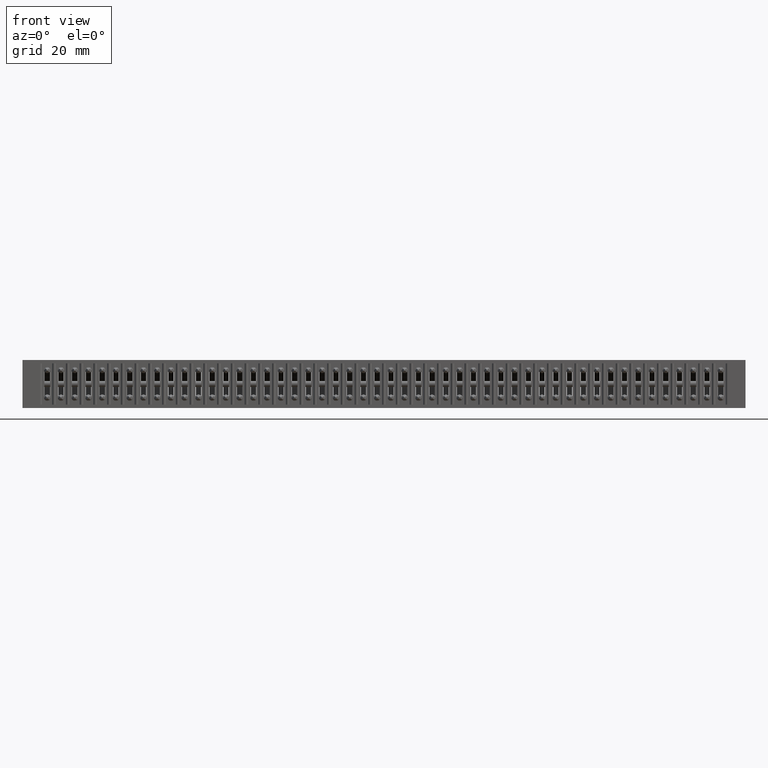
[diagram: clean part render]
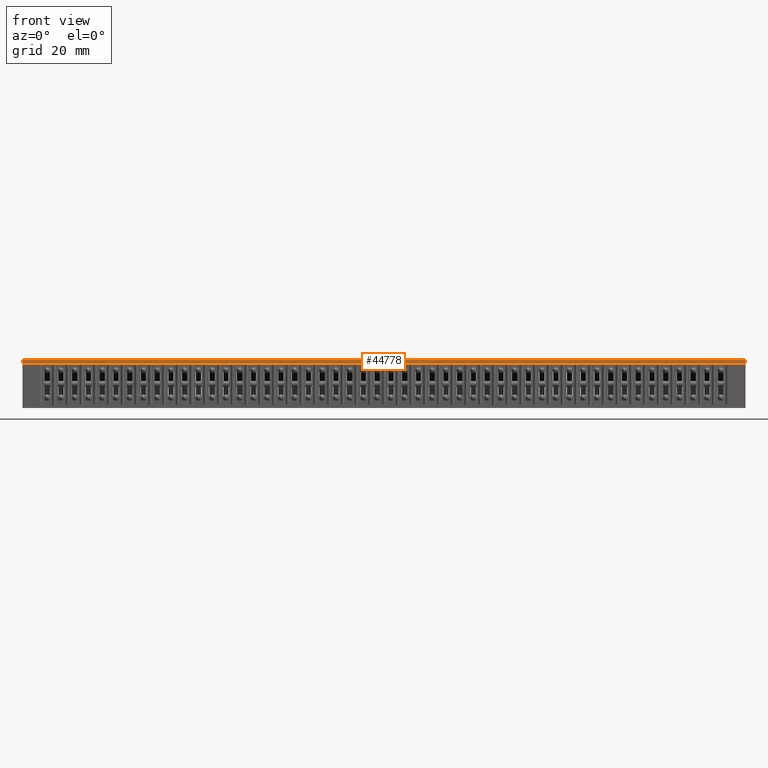
[diagram: same view with one face highlighted and labeled with its STEP entity id]
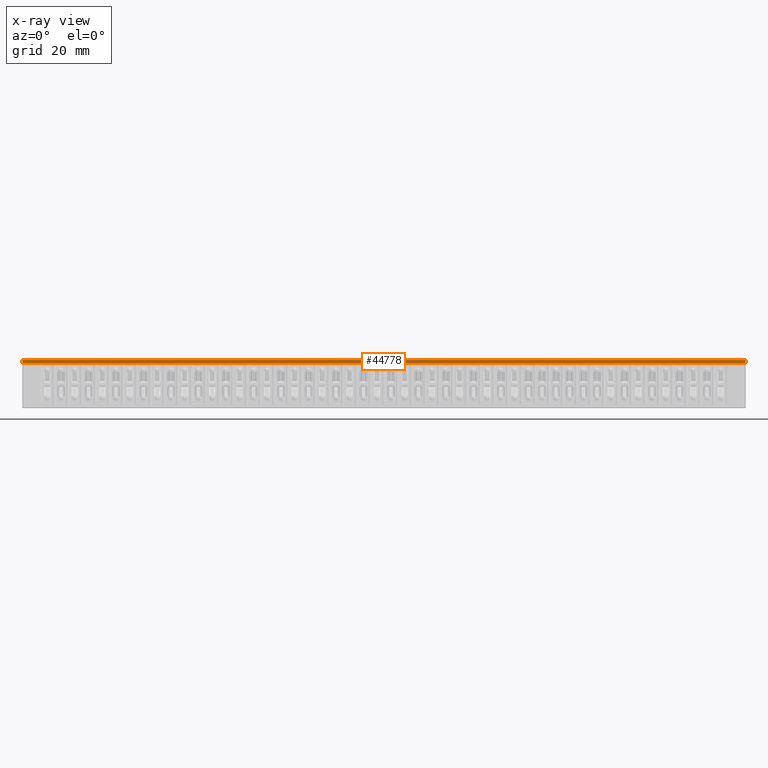
[diagram: x-ray of the same camera — body ghosted, the highlighted face saturated]
A machine part, front view. The second image highlights one B-rep face of the part: STEP entity #44778.
The next image is the same camera in x-ray: the body ghosted, the highlighted face saturated — about 0% of this face is hidden behind the body in this view.
In plain terms, the highlighted planar face has unit normal (0, 1, 0).
Its self-contained STEP definition (entity closure, byte-faithful):
#3738 = DIRECTION ( 'NONE',  ( -1.000000000000000000, -0.0000000000000000000, -0.0000000000000000000 ) ) ;
#4419 = EDGE_CURVE ( 'NONE', #65221, #13289, #43612, .T. ) ;
#5583 = CARTESIAN_POINT ( 'NONE',  ( 5.259999999999999800, 0.1000000000000000100, 0.0000000000000000000 ) ) ;
#6969 = ORIENTED_EDGE ( 'NONE', *, *, #4419, .T. ) ;
#9023 = CARTESIAN_POINT ( 'NONE',  ( 0.0000000000000000000, 0.1000000000000000100, 0.0000000000000000000 ) ) ;
#11071 = AXIS2_PLACEMENT_3D ( 'NONE', #61870, #23524, #68321 ) ;
#13289 = VERTEX_POINT ( 'NONE', #54188 ) ;
#15194 = VECTOR ( 'NONE', #3738, 39.37007874015748100 ) ;
#23161 = VECTOR ( 'NONE', #80074, 39.37007874015748100 ) ;
#23524 = DIRECTION ( 'NONE',  ( -0.0000000000000000000, 1.000000000000000000, 0.0000000000000000000 ) ) ;
#24394 = ORIENTED_EDGE ( 'NONE', *, *, #39703, .F. ) ;
#25047 = CARTESIAN_POINT ( 'NONE',  ( 5.259999999999999800, 0.1000000000000000100, -0.02500000000000000500 ) ) ;
#25244 = ORIENTED_EDGE ( 'NONE', *, *, #54984, .T. ) ;
#34749 = VERTEX_POINT ( 'NONE', #25047 ) ;
#36190 = ORIENTED_EDGE ( 'NONE', *, *, #45464, .F. ) ;
#36292 = CARTESIAN_POINT ( 'NONE',  ( 5.259999999999999800, 0.1000000000000000100, -0.02500000000000000500 ) ) ;
#36302 = CARTESIAN_POINT ( 'NONE',  ( 0.0000000000000000000, 0.1000000000000000100, 0.0000000000000000000 ) ) ;
#39703 = EDGE_CURVE ( 'NONE', #56336, #34749, #74261, .T. ) ;
#41554 = VECTOR ( 'NONE', #62313, 39.37007874015748100 ) ;
#43612 = LINE ( 'NONE', #36302, #47657 ) ;
#44778 = ADVANCED_FACE ( 'NONE', ( #65774 ), #55403, .F. ) ;
#45464 = EDGE_CURVE ( 'NONE', #34749, #13289, #75641, .T. ) ;
#47657 = VECTOR ( 'NONE', #74674, 39.37007874015748100 ) ;
#51215 = LINE ( 'NONE', #80482, #15194 ) ;
#54188 = CARTESIAN_POINT ( 'NONE',  ( 0.0000000000000000000, 0.1000000000000000100, -0.02500000000000000500 ) ) ;
#54648 = EDGE_LOOP ( 'NONE', ( #6969, #36190, #24394, #25244 ) ) ;
#54984 = EDGE_CURVE ( 'NONE', #56336, #65221, #51215, .T. ) ;
#55403 = PLANE ( 'NONE',  #11071 ) ;
#56336 = VERTEX_POINT ( 'NONE', #5583 ) ;
#61870 = CARTESIAN_POINT ( 'NONE',  ( 5.259999999999999800, 0.1000000000000000100, 0.0000000000000000000 ) ) ;
#62313 = DIRECTION ( 'NONE',  ( -1.000000000000000000, -0.0000000000000000000, -0.0000000000000000000 ) ) ;
#65221 = VERTEX_POINT ( 'NONE', #9023 ) ;
#65774 = FACE_OUTER_BOUND ( 'NONE', #54648, .T. ) ;
#68321 = DIRECTION ( 'NONE',  ( 0.0000000000000000000, -0.0000000000000000000, 1.000000000000000000 ) ) ;
#73639 = CARTESIAN_POINT ( 'NONE',  ( 5.259999999999999800, 0.1000000000000000100, 0.0000000000000000000 ) ) ;
#74261 = LINE ( 'NONE', #73639, #23161 ) ;
#74674 = DIRECTION ( 'NONE',  ( 0.0000000000000000000, 0.0000000000000000000, -1.000000000000000000 ) ) ;
#75641 = LINE ( 'NONE', #36292, #41554 ) ;
#80074 = DIRECTION ( 'NONE',  ( 0.0000000000000000000, 0.0000000000000000000, -1.000000000000000000 ) ) ;
#80482 = CARTESIAN_POINT ( 'NONE',  ( 5.259999999999999800, 0.1000000000000000100, 0.0000000000000000000 ) ) ;